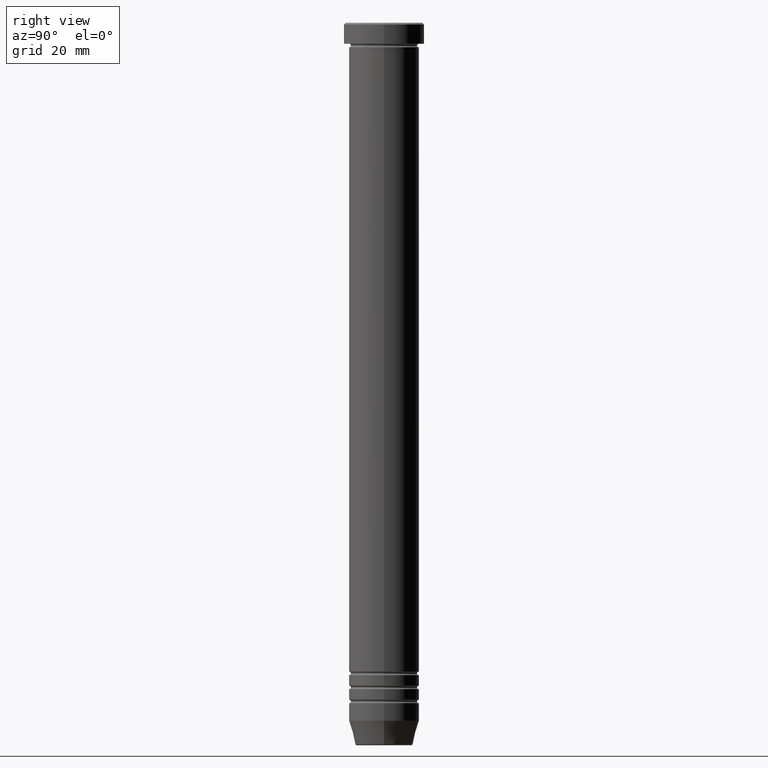
[diagram: clean part render]
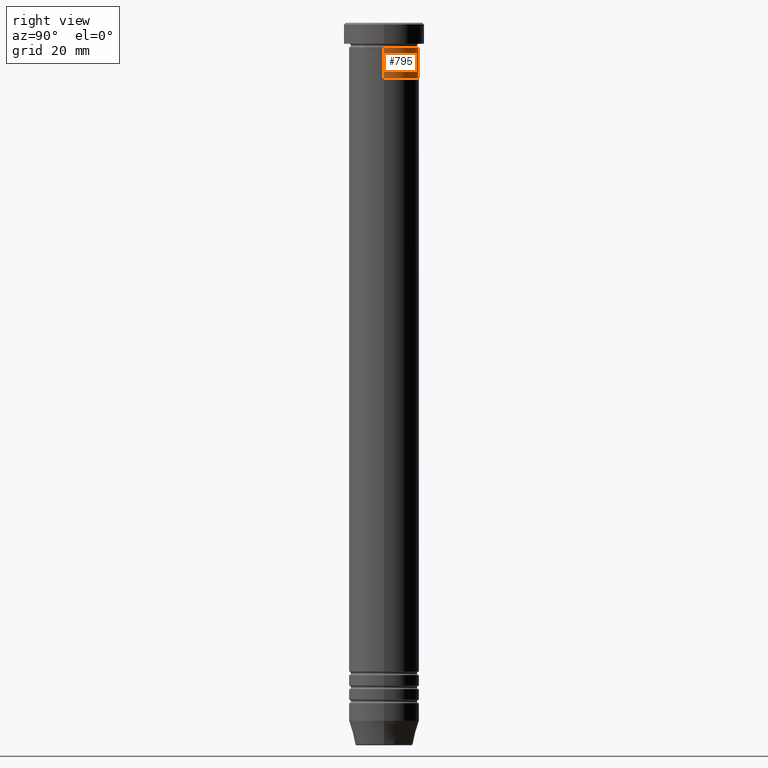
[diagram: same view with one face highlighted and labeled with its STEP entity id]
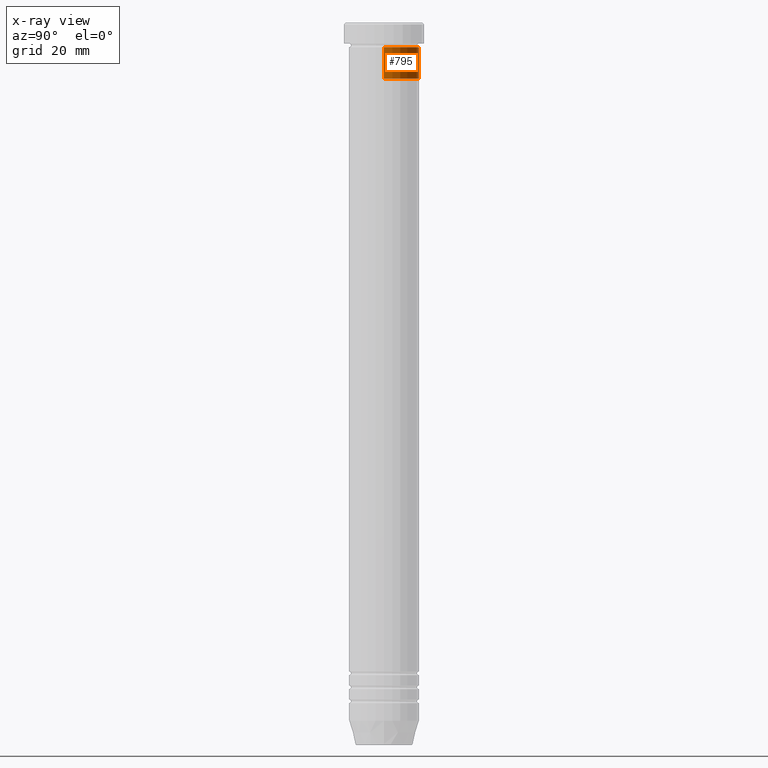
[diagram: x-ray of the same camera — body ghosted, the highlighted face saturated]
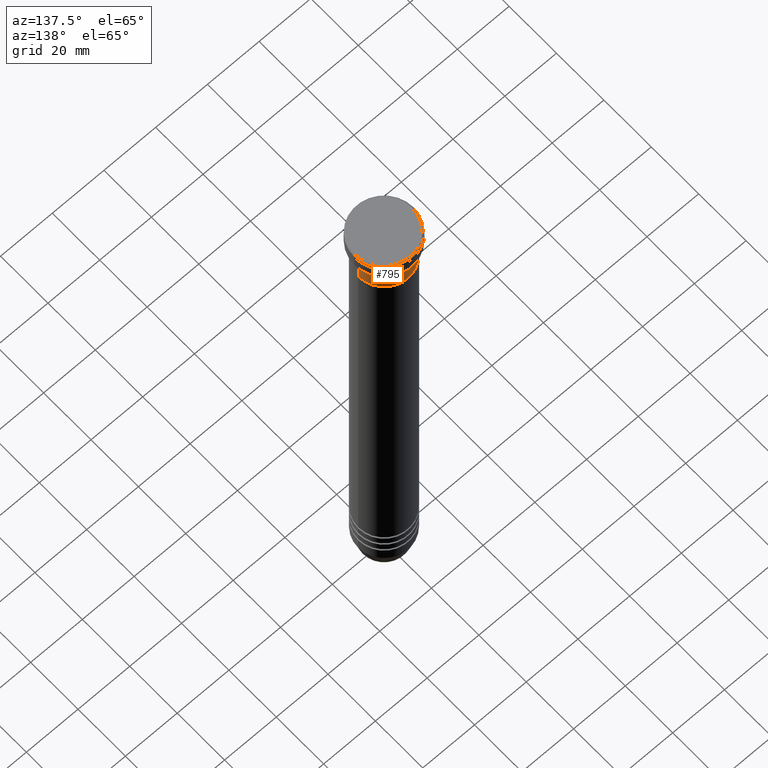
[diagram: same view with one face highlighted and labeled with its STEP entity id]
A machine part, right view. The second image highlights one B-rep face of the part: STEP entity #795.
The next image is the same camera in x-ray: the body ghosted, the highlighted face saturated — about 0% of this face is hidden behind the body in this view.
A second angle (auxiliary view) of the same face is appended — the face is thin or edge-on in the first view.
In plain terms, the highlighted cylindrical surface (edge-blend (fillet) strip) has radius 10 mm, axis along (-0, -0, 1).
Its self-contained STEP definition (entity closure, byte-faithful):
#23 = DIRECTION ( 'NONE',  ( 1.000000000000000000, 0.000000000000000000, 0.000000000000000000 ) ) ;
#36 = CARTESIAN_POINT ( 'NONE',  ( 10.00000000000000000, 0.000000000000000000, -16.00000000000000000 ) ) ;
#59 = CARTESIAN_POINT ( 'NONE',  ( -10.00000000000000000, 1.224646799147353256E-15, -6.999999999999999112 ) ) ;
#60 = VECTOR ( 'NONE', #760, 1000.000000000000000 ) ;
#67 = ORIENTED_EDGE ( 'NONE', *, *, #766, .T. ) ;
#81 = ORIENTED_EDGE ( 'NONE', *, *, #421, .F. ) ;
#86 = VECTOR ( 'NONE', #232, 1000.000000000000000 ) ;
#115 = CARTESIAN_POINT ( 'NONE',  ( 0.000000000000000000, 0.000000000000000000, 0.000000000000000000 ) ) ;
#143 = CIRCLE ( 'NONE', #1078, 10.00000000000000000 ) ;
#184 = EDGE_CURVE ( 'NONE', #599, #545, #355, .T. ) ;
#232 = DIRECTION ( 'NONE',  ( -0.000000000000000000, -0.000000000000000000, 1.000000000000000000 ) ) ;
#235 = CARTESIAN_POINT ( 'NONE',  ( 0.000000000000000000, 0.000000000000000000, -6.999999999999999112 ) ) ;
#323 = LINE ( 'NONE', #497, #86 ) ;
#355 = CIRCLE ( 'NONE', #1002, 10.00000000000000000 ) ;
#358 = AXIS2_PLACEMENT_3D ( 'NONE', #115, #451, #23 ) ;
#392 = DIRECTION ( 'NONE',  ( 1.000000000000000000, 0.000000000000000000, 0.000000000000000000 ) ) ;
#421 = EDGE_CURVE ( 'NONE', #1144, #1083, #143, .T. ) ;
#451 = DIRECTION ( 'NONE',  ( -0.000000000000000000, -0.000000000000000000, 1.000000000000000000 ) ) ;
#497 = CARTESIAN_POINT ( 'NONE',  ( 10.00000000000000000, 0.000000000000000000, 0.000000000000000000 ) ) ;
#545 = VERTEX_POINT ( 'NONE', #713 ) ;
#589 = CARTESIAN_POINT ( 'NONE',  ( -10.00000000000000000, 1.224646799147353256E-15, 0.000000000000000000 ) ) ;
#599 = VERTEX_POINT ( 'NONE', #36 ) ;
#637 = EDGE_CURVE ( 'NONE', #599, #1144, #323, .T. ) ;
#686 = DIRECTION ( 'NONE',  ( 1.000000000000000000, 0.000000000000000000, 0.000000000000000000 ) ) ;
#693 = ORIENTED_EDGE ( 'NONE', *, *, #184, .T. ) ;
#713 = CARTESIAN_POINT ( 'NONE',  ( -10.00000000000000000, 1.224646799147353256E-15, -16.00000000000000000 ) ) ;
#723 = CYLINDRICAL_SURFACE ( 'NONE', #358, 10.00000000000000000 ) ;
#755 = ORIENTED_EDGE ( 'NONE', *, *, #637, .F. ) ;
#760 = DIRECTION ( 'NONE',  ( -0.000000000000000000, -0.000000000000000000, 1.000000000000000000 ) ) ;
#766 = EDGE_CURVE ( 'NONE', #545, #1083, #845, .T. ) ;
#795 = ADVANCED_FACE ( 'NONE', ( #1070 ), #723, .T. ) ;
#796 = CARTESIAN_POINT ( 'NONE',  ( 10.00000000000000000, 0.000000000000000000, -6.999999999999999112 ) ) ;
#808 = EDGE_LOOP ( 'NONE', ( #693, #67, #81, #755 ) ) ;
#845 = LINE ( 'NONE', #589, #60 ) ;
#942 = DIRECTION ( 'NONE',  ( -0.000000000000000000, -0.000000000000000000, 1.000000000000000000 ) ) ;
#1002 = AXIS2_PLACEMENT_3D ( 'NONE', #1004, #1023, #392 ) ;
#1004 = CARTESIAN_POINT ( 'NONE',  ( 0.000000000000000000, 0.000000000000000000, -16.00000000000000000 ) ) ;
#1023 = DIRECTION ( 'NONE',  ( -0.000000000000000000, -0.000000000000000000, 1.000000000000000000 ) ) ;
#1070 = FACE_OUTER_BOUND ( 'NONE', #808, .T. ) ;
#1078 = AXIS2_PLACEMENT_3D ( 'NONE', #235, #942, #686 ) ;
#1083 = VERTEX_POINT ( 'NONE', #59 ) ;
#1144 = VERTEX_POINT ( 'NONE', #796 ) ;